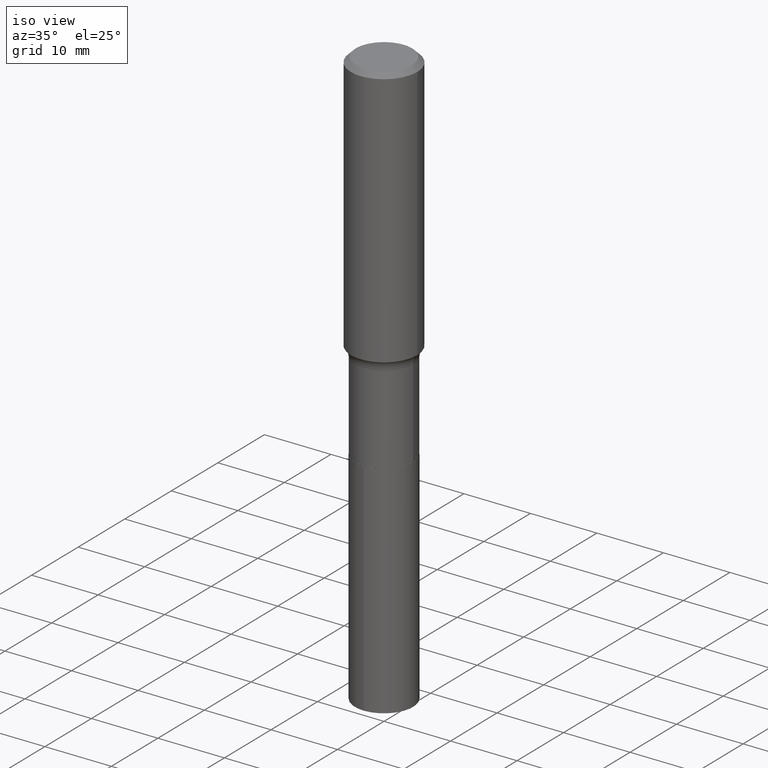
[diagram: clean part render]
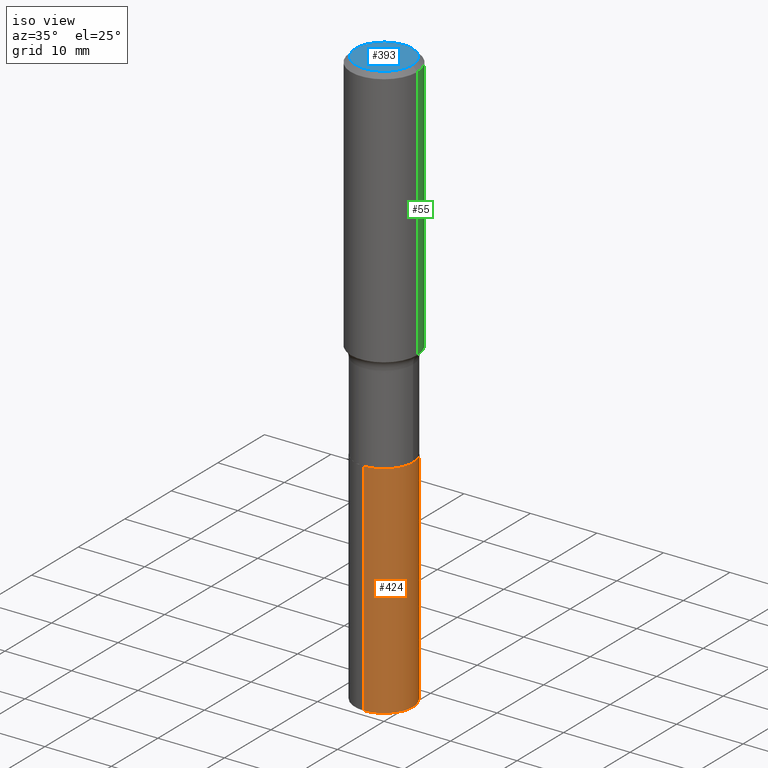
[diagram: same view with three faces highlighted in distinct colors, each labeled with its STEP entity id]
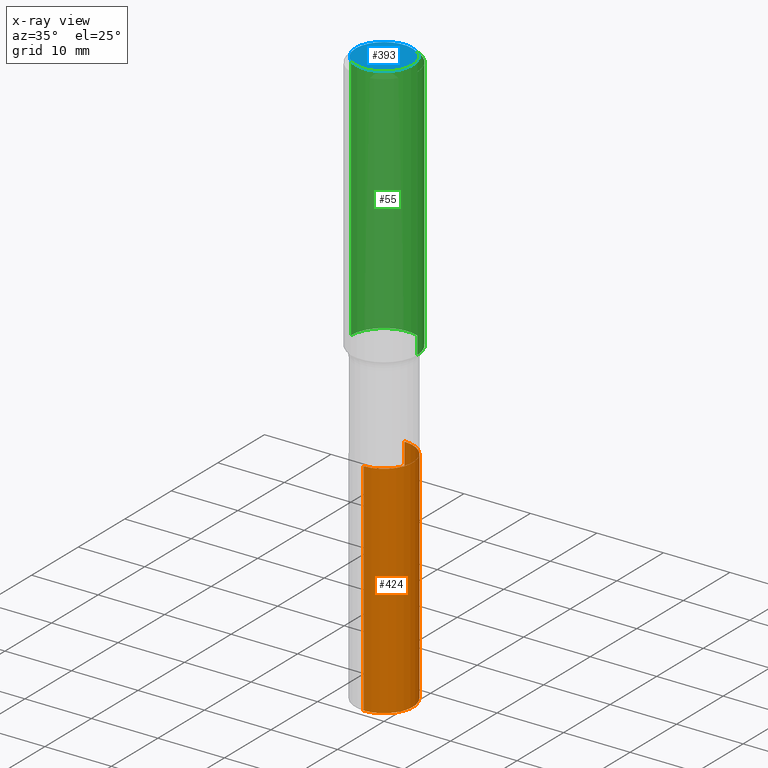
[diagram: x-ray of the same camera — body ghosted, the three highlighted faces saturated]
A machine part, iso view with three faces highlighted in distinct colors.
The next image is the same camera in x-ray (body ghosted, the three faces saturated) — at least one of them is partly hidden behind the body in this view.
Their STEP definitions:

[orange] entity #424 — the highlighted cylindrical surface (edge-blend (fillet) strip) has radius 4.3663 mm, axis along (-0, 0, 1).
#37 = VERTEX_POINT ( 'NONE', #487 ) ;
#49 = CYLINDRICAL_SURFACE ( 'NONE', #73, 0.1718999999999999695 ) ;
#64 = CARTESIAN_POINT ( 'NONE',  ( 8.398889815641044557E-29, -1.199123249035324259E-14, -3.434447891778936945 ) ) ;
#73 = AXIS2_PLACEMENT_3D ( 'NONE', #163, #319, #203 ) ;
#97 = CARTESIAN_POINT ( 'NONE',  ( -1.200371284294217176E-15, -0.1719000000000073802, -2.125899999999999235 ) ) ;
#111 = ORIENTED_EDGE ( 'NONE', *, *, #305, .T. ) ;
#123 = CARTESIAN_POINT ( 'NONE',  ( 1.221422962771696016E-15, 0.1718999999999925588, -2.125900000000000567 ) ) ;
#136 = LINE ( 'NONE', #165, #318 ) ;
#141 = EDGE_LOOP ( 'NONE', ( #111, #438, #492, #371 ) ) ;
#161 = DIRECTION ( 'NONE',  ( -2.445510554620705079E-29, 3.491421552707238058E-15, 1.000000000000000000 ) ) ;
#163 = CARTESIAN_POINT ( 'NONE',  ( 5.198822135068982087E-29, -7.422540178246643119E-15, -2.125899999999999679 ) ) ;
#165 = CARTESIAN_POINT ( 'NONE',  ( -1.200371284294217176E-15, -0.1719000000000073802, -2.125899999999999235 ) ) ;
#167 = LINE ( 'NONE', #353, #187 ) ;
#177 = EDGE_CURVE ( 'NONE', #284, #307, #270, .T. ) ;
#187 = VECTOR ( 'NONE', #387, 39.37007874015748143 ) ;
#203 = DIRECTION ( 'NONE',  ( -6.982962677686266711E-15, -1.000000000000000000, 3.178415350394722068E-15 ) ) ;
#210 = DIRECTION ( 'NONE',  ( -6.982962677686266711E-15, -1.000000000000000000, 3.178415350394722068E-15 ) ) ;
#214 = DIRECTION ( 'NONE',  ( -2.445510554620705079E-29, 3.491421552707238058E-15, 1.000000000000000000 ) ) ;
#255 = VERTEX_POINT ( 'NONE', #443 ) ;
#270 = CIRCLE ( 'NONE', #448, 0.1718999999999999695 ) ;
#276 = CARTESIAN_POINT ( 'NONE',  ( 5.198822135068982087E-29, -7.422540178246643119E-15, -2.125899999999999679 ) ) ;
#284 = VERTEX_POINT ( 'NONE', #97 ) ;
#299 = FACE_OUTER_BOUND ( 'NONE', #141, .T. ) ;
#301 = DIRECTION ( 'NONE',  ( -6.982962677686266711E-15, -1.000000000000000000, 3.178415350394722068E-15 ) ) ;
#305 = EDGE_CURVE ( 'NONE', #255, #37, #428, .T. ) ;
#307 = VERTEX_POINT ( 'NONE', #123 ) ;
#310 = EDGE_CURVE ( 'NONE', #255, #284, #136, .T. ) ;
#318 = VECTOR ( 'NONE', #423, 39.37007874015748143 ) ;
#319 = DIRECTION ( 'NONE',  ( -2.445510554620705079E-29, 3.491421552707238058E-15, 1.000000000000000000 ) ) ;
#353 = CARTESIAN_POINT ( 'NONE',  ( 1.221422962771663673E-15, 0.1718999999999925588, -2.125900000000000567 ) ) ;
#371 = ORIENTED_EDGE ( 'NONE', *, *, #310, .F. ) ;
#387 = DIRECTION ( 'NONE',  ( -2.445510554620705359E-29, 3.491421552707238452E-15, 1.000000000000000000 ) ) ;
#423 = DIRECTION ( 'NONE',  ( -2.445510554620705359E-29, 3.491421552707238452E-15, 1.000000000000000000 ) ) ;
#424 = ADVANCED_FACE ( 'NONE', ( #299 ), #49, .T. ) ;
#428 = CIRCLE ( 'NONE', #454, 0.1718999999999999695 ) ;
#438 = ORIENTED_EDGE ( 'NONE', *, *, #446, .T. ) ;
#443 = CARTESIAN_POINT ( 'NONE',  ( -1.200371284294185030E-15, -0.1719000000000119599, -3.434447891778936501 ) ) ;
#446 = EDGE_CURVE ( 'NONE', #37, #307, #167, .T. ) ;
#448 = AXIS2_PLACEMENT_3D ( 'NONE', #276, #161, #301 ) ;
#454 = AXIS2_PLACEMENT_3D ( 'NONE', #64, #214, #210 ) ;
#487 = CARTESIAN_POINT ( 'NONE',  ( 1.221422962771695819E-15, 0.1718999999999880068, -3.434447891778937390 ) ) ;
#492 = ORIENTED_EDGE ( 'NONE', *, *, #177, .F. ) ;

[blue] entity #393 — the highlighted planar face has unit normal (0, -0, -1).
#26 = CARTESIAN_POINT ( 'NONE',  ( -0.1673224999999999851, 1.219954130253505460E-15, 4.096137381439757534E-18 ) ) ;
#54 = CARTESIAN_POINT ( 'NONE',  ( 0.1673224999999999851, -1.300749711163072594E-15, 4.096137381456741925E-18 ) ) ;
#58 = EDGE_LOOP ( 'NONE', ( #272, #132 ) ) ;
#67 = CARTESIAN_POINT ( 'NONE',  ( -1.001697619218021790E-46, 1.430158722866389718E-32, 4.096137381448108366E-18 ) ) ;
#84 = VERTEX_POINT ( 'NONE', #54 ) ;
#132 = ORIENTED_EDGE ( 'NONE', *, *, #209, .T. ) ;
#133 = FACE_OUTER_BOUND ( 'NONE', #58, .T. ) ;
#140 = DIRECTION ( 'NONE',  ( -2.445468806185136597E-29, 3.491481338843145583E-15, 1.000000000000000000 ) ) ;
#209 = EDGE_CURVE ( 'NONE', #84, #455, #385, .T. ) ;
#212 = DIRECTION ( 'NONE',  ( 2.438088387897960049E-29, -3.491481338843145188E-15, -1.000000000000000000 ) ) ;
#235 = AXIS2_PLACEMENT_3D ( 'NONE', #315, #257, #328 ) ;
#257 = DIRECTION ( 'NONE',  ( -2.445468806185136597E-29, 3.491481338843145583E-15, 1.000000000000000000 ) ) ;
#272 = ORIENTED_EDGE ( 'NONE', *, *, #472, .T. ) ;
#296 = PLANE ( 'NONE',  #312 ) ;
#312 = AXIS2_PLACEMENT_3D ( 'NONE', #467, #212, #329 ) ;
#315 = CARTESIAN_POINT ( 'NONE',  ( -1.001697619218021790E-46, 1.430158722866389718E-32, 4.096137381448108366E-18 ) ) ;
#328 = DIRECTION ( 'NONE',  ( 1.000000000000000000, -6.982962677686267499E-15, 4.876294436782262290E-29 ) ) ;
#329 = DIRECTION ( 'NONE',  ( -1.000000000000000000, 6.982962677686265922E-15, -4.876176775795935793E-29 ) ) ;
#332 = DIRECTION ( 'NONE',  ( 1.000000000000000000, -6.982962677686267499E-15, 4.876294436782262290E-29 ) ) ;
#352 = AXIS2_PLACEMENT_3D ( 'NONE', #67, #140, #332 ) ;
#385 = CIRCLE ( 'NONE', #235, 0.1673224999999999851 ) ;
#386 = CIRCLE ( 'NONE', #352, 0.1673224999999999851 ) ;
#393 = ADVANCED_FACE ( 'NONE', ( #133 ), #296, .F. ) ;
#455 = VERTEX_POINT ( 'NONE', #26 ) ;
#467 = CARTESIAN_POINT ( 'NONE',  ( -5.008488096090108951E-47, 7.150793614331948590E-33, 2.048068690724054183E-18 ) ) ;
#472 = EDGE_CURVE ( 'NONE', #455, #84, #386, .T. ) ;

[green] entity #55 — the highlighted cylindrical surface (partial cylindrical patch) has radius 5 mm, axis along (-0, 0, 1).
#1 = EDGE_LOOP ( 'NONE', ( #95, #274, #415, #249 ) ) ;
#42 = VERTEX_POINT ( 'NONE', #227 ) ;
#51 = AXIS2_PLACEMENT_3D ( 'NONE', #215, #482, #327 ) ;
#55 = ADVANCED_FACE ( 'NONE', ( #238 ), #92, .T. ) ;
#87 = CARTESIAN_POINT ( 'NONE',  ( 3.777561471513221514E-29, -5.393356623794430773E-15, -1.544718731213796659 ) ) ;
#91 = DIRECTION ( 'NONE',  ( 1.000000000000000000, -6.982962677686265922E-15, 0.000000000000000000 ) ) ;
#92 = CYLINDRICAL_SURFACE ( 'NONE', #222, 0.1968500000000001082 ) ;
#93 = CARTESIAN_POINT ( 'NONE',  ( 0.1968500000000001082, -1.374596203102542397E-15, 9.598753983154305062E-30 ) ) ;
#94 = DIRECTION ( 'NONE',  ( -2.445468806185136597E-29, 3.491481338843145583E-15, 1.000000000000000000 ) ) ;
#95 = ORIENTED_EDGE ( 'NONE', *, *, #331, .T. ) ;
#112 = EDGE_CURVE ( 'NONE', #200, #42, #360, .T. ) ;
#135 = EDGE_CURVE ( 'NONE', #395, #200, #330, .T. ) ;
#153 = VERTEX_POINT ( 'NONE', #179 ) ;
#179 = CARTESIAN_POINT ( 'NONE',  ( -0.1968500000000002192, -3.994653248450672985E-15, -1.544718731213796659 ) ) ;
#199 = CARTESIAN_POINT ( 'NONE',  ( 0.000000000000000000, 0.000000000000000000, 0.000000000000000000 ) ) ;
#200 = VERTEX_POINT ( 'NONE', #279 ) ;
#215 = CARTESIAN_POINT ( 'NONE',  ( 7.220858017463212113E-31, -1.030947152326916979E-16, -0.02952750000000020289 ) ) ;
#222 = AXIS2_PLACEMENT_3D ( 'NONE', #199, #459, #237 ) ;
#223 = CIRCLE ( 'NONE', #449, 0.1968500000000002192 ) ;
#227 = CARTESIAN_POINT ( 'NONE',  ( -0.1968500000000000527, -1.349522294169803047E-15, -0.02952750000000020289 ) ) ;
#237 = DIRECTION ( 'NONE',  ( 1.000000000000000000, -6.982962677686266711E-15, 4.876176775795935793E-29 ) ) ;
#238 = FACE_OUTER_BOUND ( 'NONE', #1, .T. ) ;
#249 = ORIENTED_EDGE ( 'NONE', *, *, #135, .F. ) ;
#253 = LINE ( 'NONE', #431, #289 ) ;
#274 = ORIENTED_EDGE ( 'NONE', *, *, #282, .T. ) ;
#279 = CARTESIAN_POINT ( 'NONE',  ( 0.1968500000000000527, -1.477690918335233688E-15, -0.02952750000000020289 ) ) ;
#282 = EDGE_CURVE ( 'NONE', #153, #42, #253, .T. ) ;
#289 = VECTOR ( 'NONE', #479, 39.37007874015748143 ) ;
#327 = DIRECTION ( 'NONE',  ( 1.000000000000000000, -6.982962677686266711E-15, 0.000000000000000000 ) ) ;
#330 = LINE ( 'NONE', #93, #477 ) ;
#331 = EDGE_CURVE ( 'NONE', #395, #153, #223, .T. ) ;
#356 = CARTESIAN_POINT ( 'NONE',  ( 0.1968500000000002192, -6.767952826896974748E-15, -1.544718731213796659 ) ) ;
#360 = CIRCLE ( 'NONE', #51, 0.1968500000000000527 ) ;
#391 = DIRECTION ( 'NONE',  ( -2.445468806185136877E-29, 3.491481338843145188E-15, 1.000000000000000000 ) ) ;
#395 = VERTEX_POINT ( 'NONE', #356 ) ;
#415 = ORIENTED_EDGE ( 'NONE', *, *, #112, .F. ) ;
#431 = CARTESIAN_POINT ( 'NONE',  ( -0.1968500000000001082, 1.398703375343757985E-15, -9.682923725166787881E-30 ) ) ;
#449 = AXIS2_PLACEMENT_3D ( 'NONE', #87, #94, #91 ) ;
#459 = DIRECTION ( 'NONE',  ( -2.445468806185136597E-29, 3.491481338843145583E-15, 1.000000000000000000 ) ) ;
#477 = VECTOR ( 'NONE', #391, 39.37007874015748143 ) ;
#479 = DIRECTION ( 'NONE',  ( -2.445468806185136877E-29, 3.491481338843145188E-15, 1.000000000000000000 ) ) ;
#482 = DIRECTION ( 'NONE',  ( -2.445468806185136597E-29, 3.491481338843145583E-15, 1.000000000000000000 ) ) ;